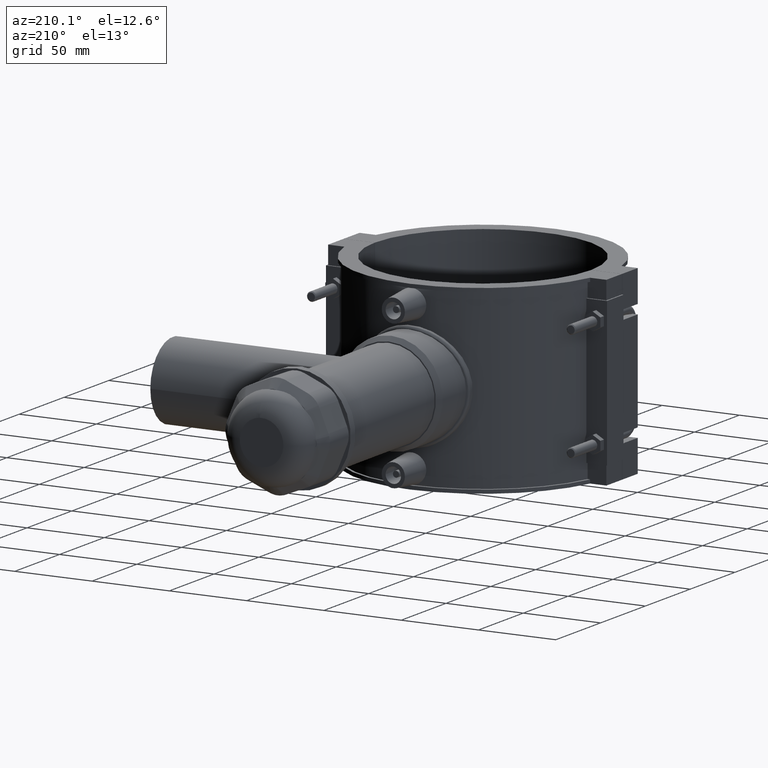
[diagram: clean part render]
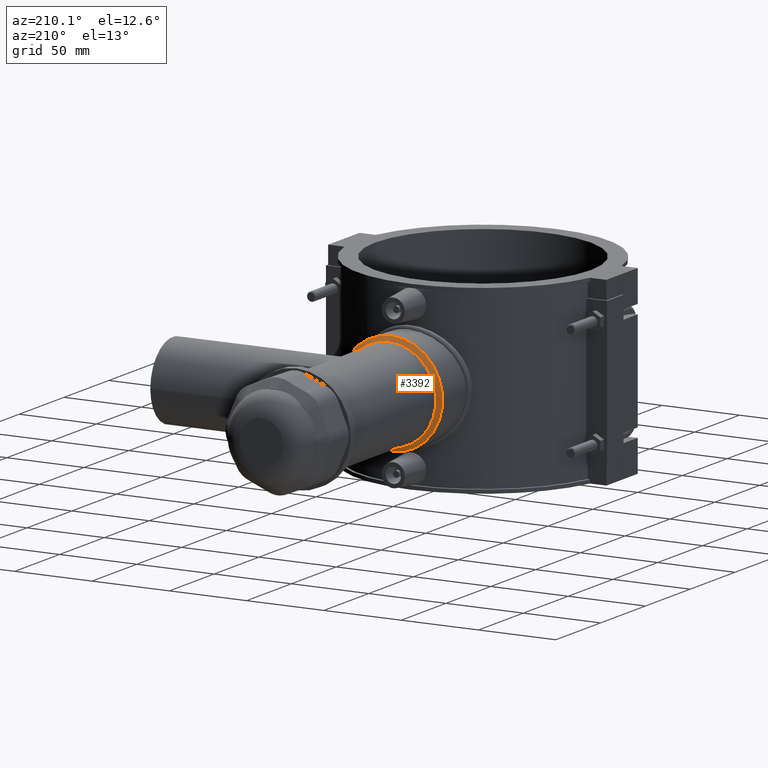
[diagram: same view with one face highlighted and labeled with its STEP entity id]
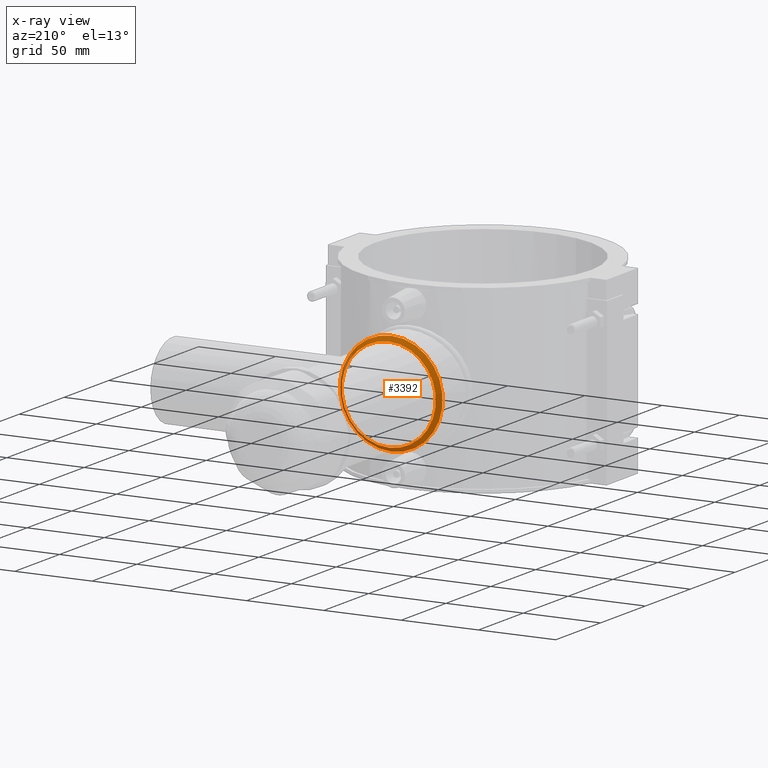
[diagram: x-ray of the same camera — body ghosted, the highlighted face saturated]
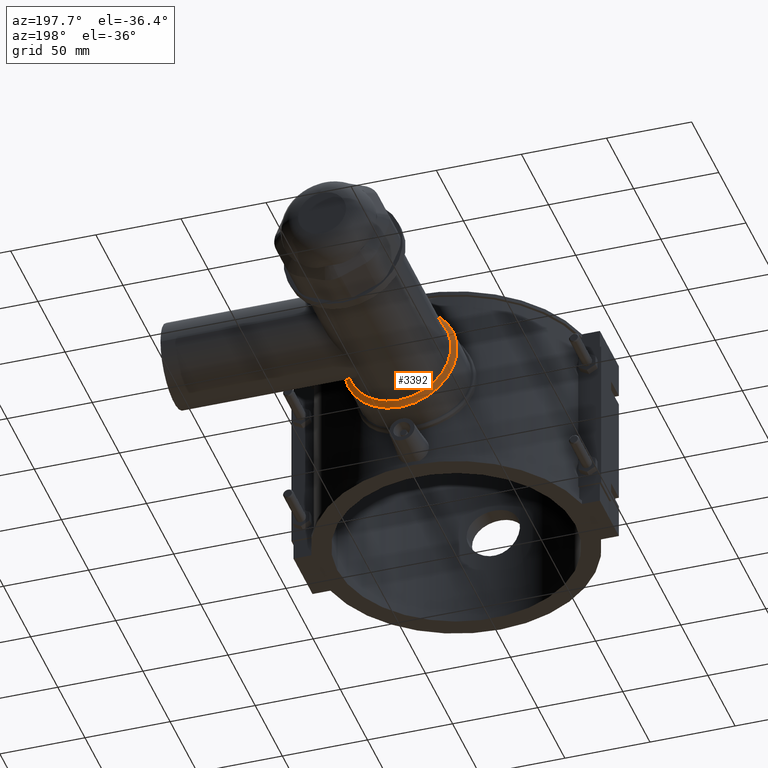
[diagram: same view with one face highlighted and labeled with its STEP entity id]
A machine part, auxiliary view. The second image highlights one B-rep face of the part: STEP entity #3392.
The next image is the same camera in x-ray: the body ghosted, the highlighted face saturated — about 16% of this face is hidden behind the body in this view.
A second angle (auxiliary view) of the same face is appended — the face is thin or edge-on in the first view.
In plain terms, the highlighted conical surface has half-angle 45 deg.
Its self-contained STEP definition (entity closure, byte-faithful):
#623=CONICAL_SURFACE('',#3617,31.85,45.);
#636=FACE_BOUND('',#1090,.T.);
#876=FACE_OUTER_BOUND('',#1089,.T.);
#1089=EDGE_LOOP('',(#2418));
#1090=EDGE_LOOP('',(#2419));
#1294=CIRCLE('',#3551,33.25);
#1325=CIRCLE('',#3618,30.45);
#1411=VERTEX_POINT('',#4879);
#1489=VERTEX_POINT('',#5681);
#1736=EDGE_CURVE('',#1411,#1411,#1294,.T.);
#1862=EDGE_CURVE('',#1489,#1489,#1325,.T.);
#2418=ORIENTED_EDGE('',*,*,#1736,.T.);
#2419=ORIENTED_EDGE('',*,*,#1862,.T.);
#3392=ADVANCED_FACE('',(#876,#636),#623,.T.);
#3551=AXIS2_PLACEMENT_3D('',#4880,#3858,#3859);
#3617=AXIS2_PLACEMENT_3D('',#5680,#4043,#4044);
#3618=AXIS2_PLACEMENT_3D('',#5682,#4045,#4046);
#3858=DIRECTION('center_axis',(0.,1.,3.06161699786838E-16));
#3859=DIRECTION('ref_axis',(0.,0.,-1.));
#4043=DIRECTION('center_axis',(0.,-1.,-3.06161699786839E-16));
#4044=DIRECTION('ref_axis',(0.,1.46352021326675E-16,-1.));
#4045=DIRECTION('center_axis',(0.,-1.,-3.06161699786838E-16));
#4046=DIRECTION('ref_axis',(0.,3.06161699786838E-16,-1.));
#4879=CARTESIAN_POINT('',(4.07195060716495E-15,102.3,33.25));
#4880=CARTESIAN_POINT('Origin',(0.,102.3,9.88902290311489E-15));
#5680=CARTESIAN_POINT('Origin',(0.,103.7,1.03176492828165E-14));
#5681=CARTESIAN_POINT('',(-3.72904950340369E-15,105.1,30.45));
#5682=CARTESIAN_POINT('Origin',(0.,105.1,1.0746275662518E-14));